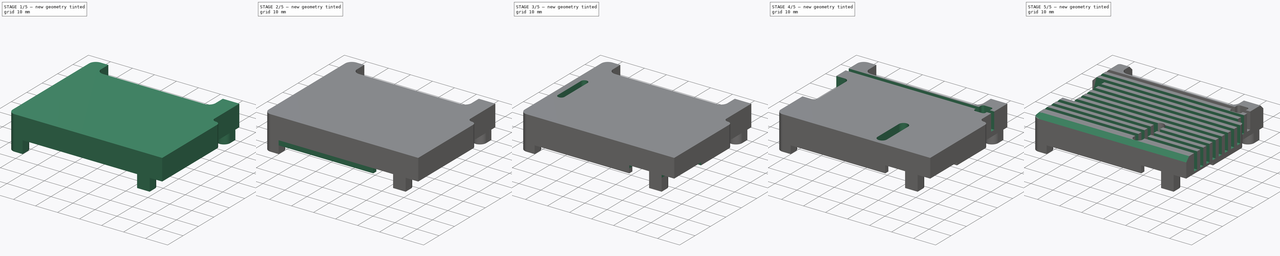
[diagram: build sequence overview — one tinted view per stage of 5, left to right]
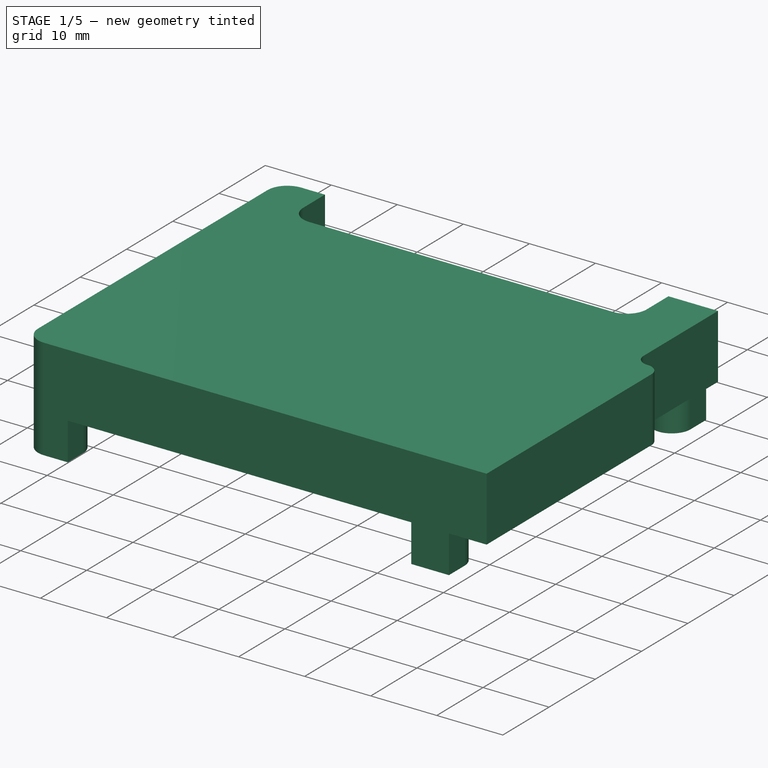
[diagram: stage 1 of 5 — iso view after this stage's code; geometry added in this stage tinted green]
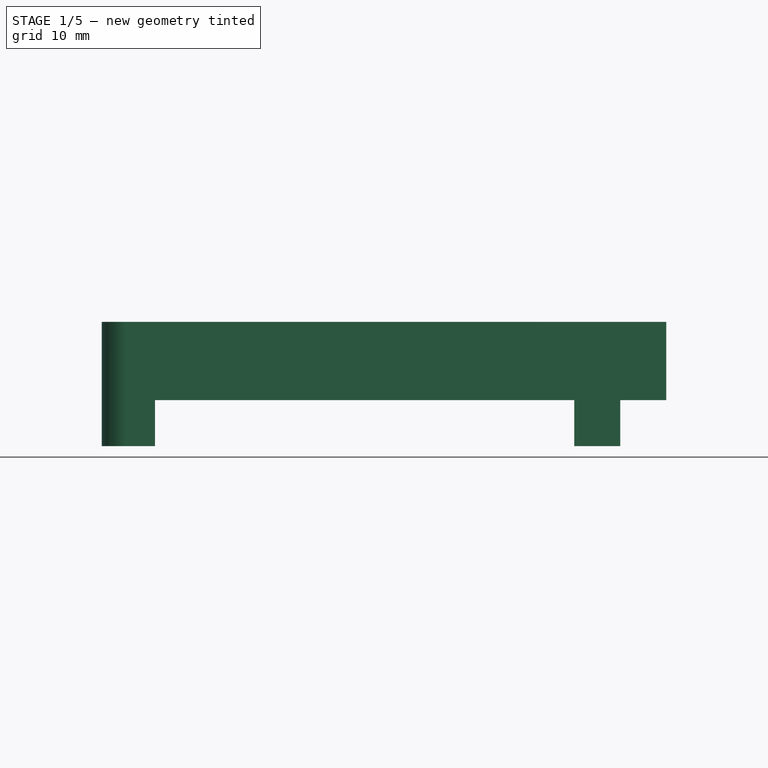
[diagram: stage 1 of 5 — front view after this stage's code; geometry added in this stage tinted green]
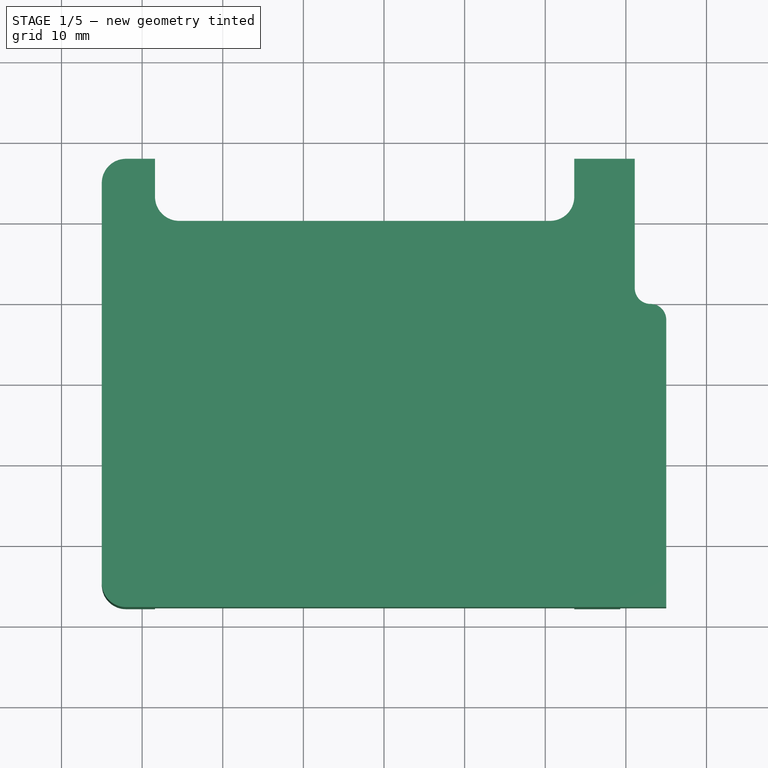
[diagram: stage 1 of 5 — top view after this stage's code; geometry added in this stage tinted green]
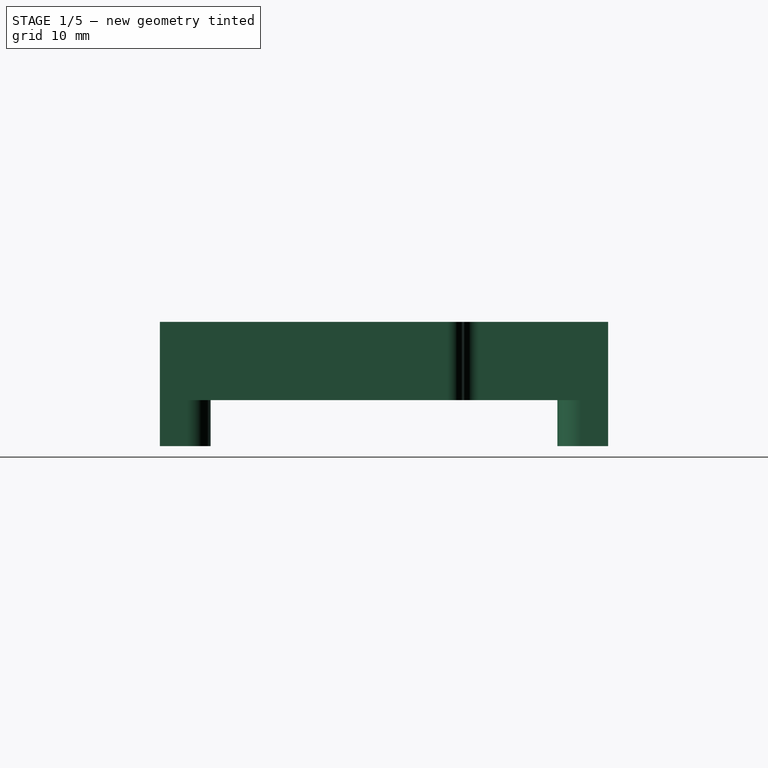
[diagram: stage 1 of 5 — right view after this stage's code; geometry added in this stage tinted green]
FCSTD DOCUMENT  (FreeCAD 0.19R24276 (Git))
Label: heatsink-top
License: All rights reserved
LicenseURL: http://en.wikipedia.org/wiki/All_rights_reserved
objects: Sketcher::SketchObject×13, PartDesign::Pocket×8, PartDesign::Pad×5, PartDesign::Chamfer×2, PartDesign::Mirrored×1, PartDesign::LinearPattern×1, PartDesign::Body×1
note: 46 computed .brp shape members not serialized (recipe doc carries the construction recipe); baked Part::Feature solids carry a one-line shape summary decoded from their .brp

FEATURE [Sketcher::SketchObject] Sketch
  FullyConstrained = false
  MapMode = 5
  Support = -> [XY_Plane]
  sketch-geometry (18):
    g0: LineSegment StartX=-35 StartY=24.8 StartZ=0 EndX=-35 EndY=-24.8 EndZ=0
    g1: LineSegment StartX=-32 StartY=27.8 StartZ=0 EndX=-28.4 EndY=27.8 EndZ=0
    g2: LineSegment StartX=-28.4 StartY=27.8 StartZ=0 EndX=-28.4 EndY=23.1 EndZ=0
    g3: ArcOfCircle CenterX=-32 CenterY=24.8 CenterZ=0 NormalX=0 NormalY=0 NormalZ=1 AngleXU=0 Radius=3 StartAngle=1.5708 EndAngle=3.14159
    g4: ArcOfCircle CenterX=-32 CenterY=-24.8 CenterZ=0 NormalX=0 NormalY=0 NormalZ=1 AngleXU=0 Radius=3 StartAngle=3.14159 EndAngle=4.71239
    g5: LineSegment StartX=-32 StartY=-27.8 StartZ=0 EndX=35 EndY=-27.8 EndZ=0
    g6: LineSegment StartX=35 StartY=-27.8 StartZ=0 EndX=35 EndY=7.85 EndZ=0
    g7: ArcOfCircle CenterX=33.05 CenterY=7.85 CenterZ=0 NormalX=0 NormalY=0 NormalZ=1 AngleXU=0 Radius=1.95 StartAngle=1e-16 EndAngle=1.5708
    g8: ArcOfCircle CenterX=33.05 CenterY=11.75 CenterZ=0 NormalX=0 NormalY=0 NormalZ=1 AngleXU=0 Radius=1.95 StartAngle=3.14159 EndAngle=4.71239
    g9: LineSegment StartX=31.1 StartY=11.75 StartZ=0 EndX=31.1 EndY=27.8 EndZ=0
    g10: LineSegment StartX=31.1 StartY=27.8 StartZ=0 EndX=23.6 EndY=27.8 EndZ=0
    g11: LineSegment StartX=23.6 StartY=27.8 StartZ=0 EndX=23.6 EndY=23.1 EndZ=0
    g12: ArcOfCircle CenterX=-25.4 CenterY=23.1 CenterZ=0 NormalX=0 NormalY=0 NormalZ=1 AngleXU=0 Radius=3 StartAngle=3.14159 EndAngle=4.71239
    g13: ArcOfCircle CenterX=20.6 CenterY=23.1 CenterZ=0 NormalX=0 NormalY=0 NormalZ=1 AngleXU=0 Radius=3 StartAngle=4.71239 EndAngle=6.28319
    g14: LineSegment StartX=-25.4 StartY=20.1 StartZ=0 EndX=20.6 EndY=20.1 EndZ=0
    g15: LineSegment StartX=25 StartY=9.8 StartZ=0 EndX=40 EndY=9.8 EndZ=0
    g16: LineSegment StartX=-35 StartY=24.8 StartZ=0 EndX=-35 EndY=27.8 EndZ=0
    g17: LineSegment StartX=-32 StartY=27.8 StartZ=0 EndX=-35 EndY=27.8 EndZ=0
  constraints (49):
    c: Vertical(g0)
    c: Horizontal(g1)
    c: Coincident(g2,g1)
    c: Vertical(g2)
    c: Tangent(g3,g1) = 1.5708
    c: Tangent(g3,g0) = -1.5708
    c: Tangent(g4,g0) = -1.5708
    c: Horizontal(g5)
    c: Coincident(g6,g5)
    c: Vertical(g6)
    c: Vertical(g9)
    c: Coincident(g10,g9)
    c: Horizontal(g10)
    c: Coincident(g11,g10)
    c: Vertical(g11)
    c: Horizontal(g14)
    c: Horizontal(g1,g10)
    c: Equal(g3,g4)
    c: Radius(g3) = 3
    c: Tangent(g5,g4) = -1.5708
    c: Tangent(g12,g2) = -1.5708
    c: Tangent(g14,g12) = -1.5708
    c: Tangent(g14,g13) = -1.5708
    c: Tangent(g13,g11) = 1.5708
    c: Tangent(g7,g6) = -1.5708
    c: Coincident(g7,g8)
    c: Horizontal(g15)
    c: Tangent(g15,g8)
    c: PointOnObject(g7,g15)
    c: Tangent(g7,g15)
    c: Equal(g7,g8)
    c: Tangent(g9,g8) = 1.5708
    c: DistanceX(g0,g5) = 70
    c: Equal(g12,g13)
    c: Radius(g12) = 3
    c: DistanceX(g0,g1) = 6.6
    c: DistanceX(g10,g10) = 7.5
    c: DistanceY(g12,g1) = 7.7
    c: DistanceY(g4,g1) = 55.6
    c: Coincident(g16,g0)
    c: Coincident(g17,g1)
    c: Coincident(g17,g16)
    c: Horizontal(g17)
    c: Vertical(g16)
    c: Symmetric(g16,g5,g-1)
    c: DistanceY(g7,g9) = 18
    c: DistanceX(g15) = 25
    c: DistanceX(g15) = 40
    c: DistanceX(g1,g10) = 52
FEATURE [PartDesign::Pad] Pad
  AllowMultiFace = false
  Direction = (1,1,1)
  Length = 9.7
  Length2 = 100
  Profile = -> Sketch
  Type = 0
FEATURE [Sketcher::SketchObject] Sketch001
  ExternalGeometry = -> [Pad]
  FullyConstrained = false
  MapMode = 5
  Placement = pos=(0,0,0) rot=(1,0,0;3.14159rad)
  Support = -> [Pad]
  sketch-geometry (11):
    g0: LineSegment StartX=-35 StartY=-21.5 StartZ=0 EndX=-35 EndY=-24.8 EndZ=0
    g1: LineSegment StartX=-28.4 StartY=-27.8 StartZ=0 EndX=-28.4 EndY=-24.5 EndZ=0
    g2: ArcOfCircle CenterX=-32 CenterY=-24.8 CenterZ=0 NormalX=0 NormalY=0 NormalZ=1 AngleXU=0 Radius=3 StartAngle=3.14159 EndAngle=4.71239
    g3: LineSegment StartX=-32 StartY=-27.8 StartZ=0 EndX=-28.4 EndY=-27.8 EndZ=0
    g4: LineSegment StartX=-35 StartY=-21.5 StartZ=0 EndX=-31.4 EndY=-21.5 EndZ=0
    g5: ArcOfCircle CenterX=-31.4 CenterY=-24.5 CenterZ=0 NormalX=0 NormalY=0 NormalZ=1 AngleXU=0 Radius=3 StartAngle=0 EndAngle=1.5708
    g6: LineSegment StartX=23.6 StartY=-27.8 StartZ=0 EndX=23.6 EndY=-24.45 EndZ=0
    g7: LineSegment StartX=23.6 StartY=-27.8 StartZ=0 EndX=29.3 EndY=-27.8 EndZ=0
    g8: ArcOfCircle CenterX=26.45 CenterY=-24.45 CenterZ=0 NormalX=0 NormalY=0 NormalZ=1 AngleXU=0 Radius=2.85 StartAngle=0 EndAngle=3.14159
    g9: LineSegment StartX=29.3 StartY=-27.8 StartZ=0 EndX=29.3 EndY=-24.45 EndZ=0
    g10: GeomPoint X=26.45 Y=-21.6 Z=0
  constraints (25):
    c: Coincident(g0,g-3)
    c: Coincident(g1,g-4)
    c: PointOnObject(g1,g-5)
    c: Tangent(g2,g-4) = -1.5708
    c: Coincident(g3,g2)
    c: Coincident(g3,g1)
    c: Tangent(g2,g0) = -1.5708
    c: Coincident(g4,g0)
    c: Horizontal(g4)
    c: Tangent(g5,g4) = 1.5708
    c: Tangent(g5,g1) = -1.5708
    c: Equal(g5,g2)
    c: DistanceY(g2,g0) = 6.3
    c: Coincident(g6,g-7)
    c: PointOnObject(g6,g-6)
    c: Coincident(g7,g6)
    c: PointOnObject(g7,g-7)
    c: Coincident(g9,g7)
    c: Tangent(g9,g8) = -1.5708
    c: Tangent(g8,g6) = 1.5708
    c: Vertical(g9)
    c: DistanceX(g7,g7) = 5.7
    c: PointOnObject(g10,g8)
    c: Vertical(g10,g8)
    c: DistanceY(g6,g10) = 6.2
FEATURE [PartDesign::Pad] Pad001
  AllowMultiFace = false
  BaseFeature = -> Pad
  Direction = (1,1,1)
  Length = 5.7
  Length2 = 100
  Profile = -> Sketch001
  Type = 0
FEATURE [PartDesign::Mirrored] Mirrored
  BaseFeature = -> Pad001
  MirrorPlane = -> Sketch001 [H_Axis]
  Originals = -> [Pad001]
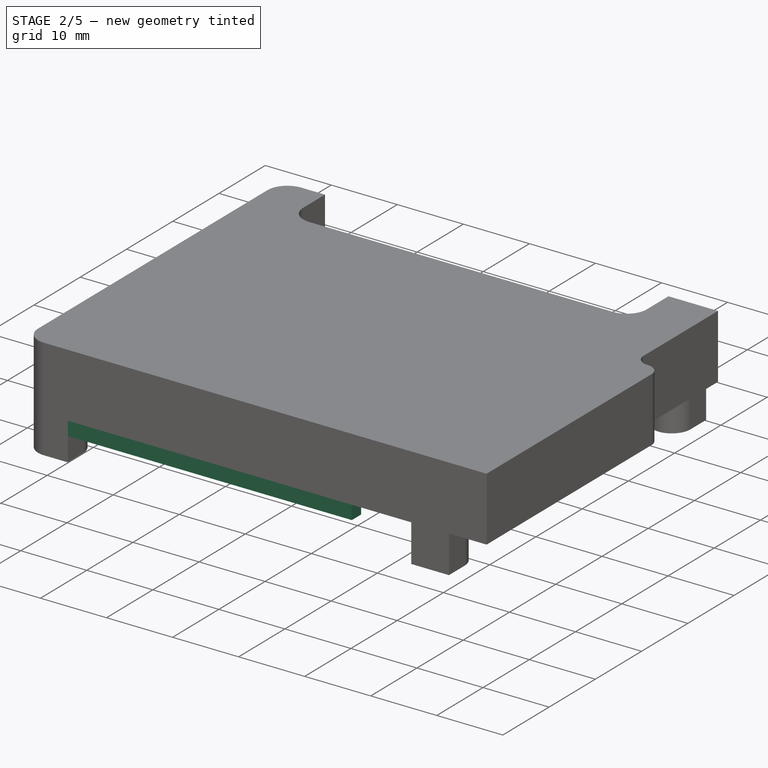
[diagram: stage 2 of 5 — iso view after this stage's code; geometry added in this stage tinted green]
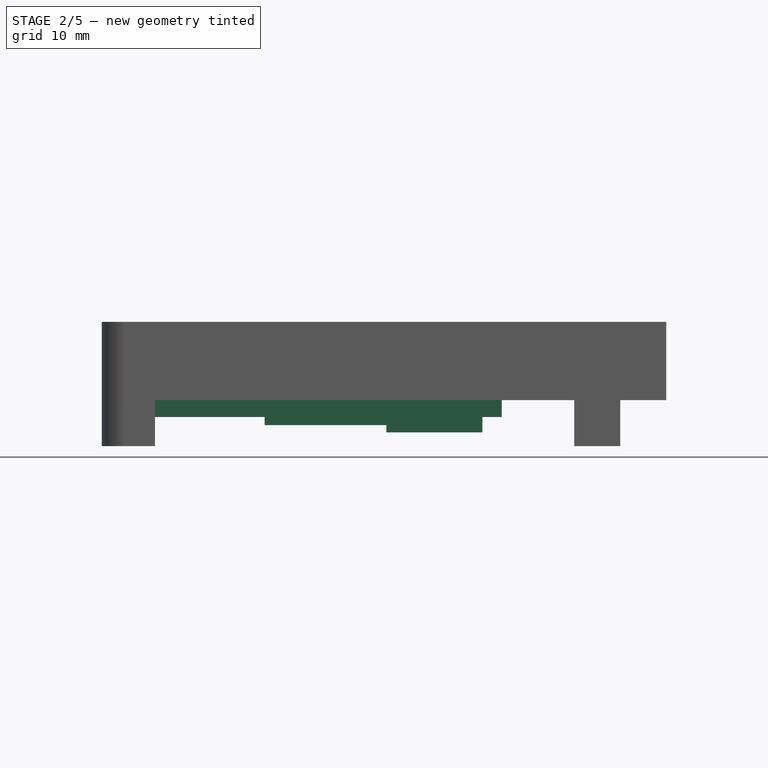
[diagram: stage 2 of 5 — front view after this stage's code; geometry added in this stage tinted green]
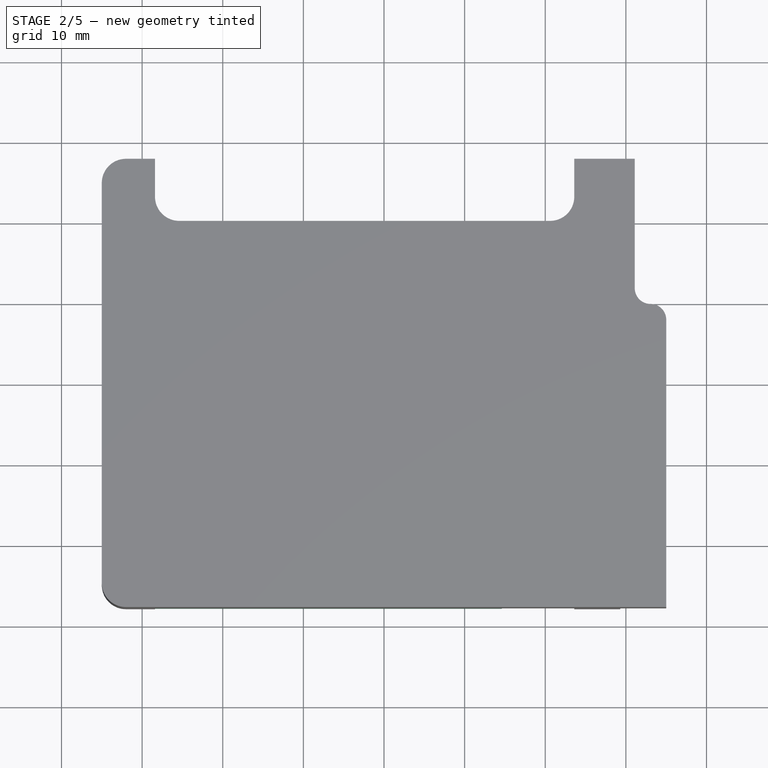
[diagram: stage 2 of 5 — top view after this stage's code; geometry added in this stage tinted green]
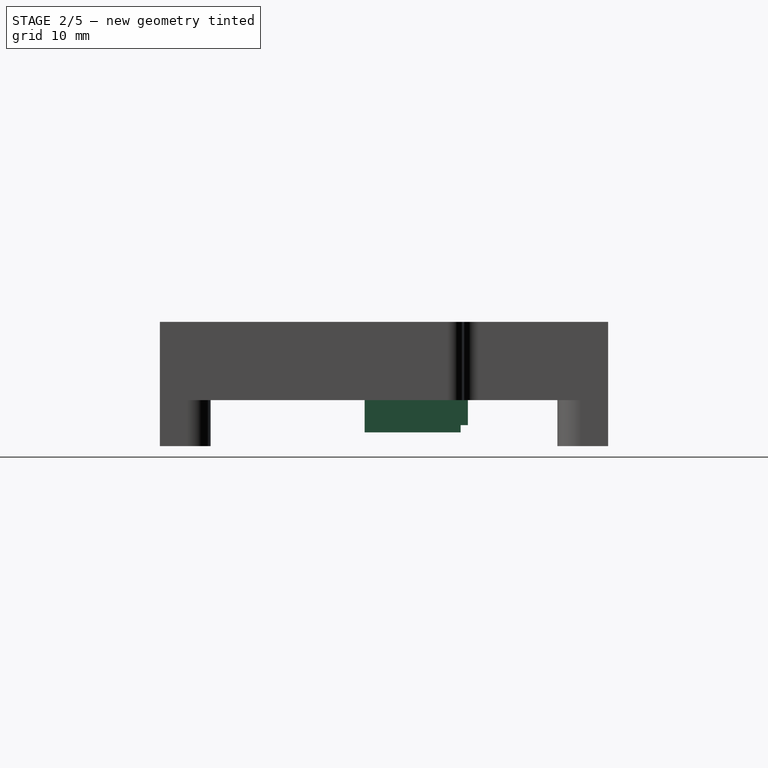
[diagram: stage 2 of 5 — right view after this stage's code; geometry added in this stage tinted green]
FEATURE [Sketcher::SketchObject] Sketch002
  ExternalGeometry = -> [Mirrored]
  FullyConstrained = false
  MapMode = 5
  Placement = pos=(0,0,0) rot=(1,0,0;3.14159rad)
  Support = -> [Mirrored]
  sketch-geometry (8):
    g0: LineSegment StartX=-28.4 StartY=27.8 StartZ=0 EndX=14.6 EndY=27.8 EndZ=0
    g1: LineSegment StartX=14.6 StartY=27.8 StartZ=0 EndX=14.6 EndY=25.8 EndZ=0
    g2: ArcOfCircle CenterX=13.1 CenterY=25.8 CenterZ=0 NormalX=0 NormalY=0 NormalZ=1 AngleXU=0 Radius=1.5 StartAngle=2.2e-15 EndAngle=1.5708
    g3: ArcOfCircle CenterX=9.1 CenterY=25.8 CenterZ=0 NormalX=0 NormalY=0 NormalZ=1 AngleXU=0 Radius=1.5 StartAngle=1.5708 EndAngle=3.14159
    g4: LineSegment StartX=9.1 StartY=27.3 StartZ=0 EndX=13.1 EndY=27.3 EndZ=0
    g5: LineSegment StartX=7.6 StartY=25.8 StartZ=0 EndX=-27.1 EndY=25.8 EndZ=0
    g6: ArcOfCircle CenterX=-27.1 CenterY=24.5 CenterZ=0 NormalX=0 NormalY=0 NormalZ=1 AngleXU=0 Radius=1.3 StartAngle=1.5708 EndAngle=3.14159
    g7: LineSegment StartX=-28.4 StartY=27.8 StartZ=0 EndX=-28.4 EndY=24.5 EndZ=0
  constraints (21):
    c: Coincident(g0,g-4)
    c: PointOnObject(g0,g-4)
    c: Coincident(g1,g0)
    c: Vertical(g1)
    c: Coincident(g2,g1)
    c: Horizontal(g4)
    c: Tangent(g4,g2) = 1.5708
    c: Tangent(g4,g3) = 1.5708
    c: DistanceY(g2,g0) = 0.5
    c: Coincident(g5,g3)
    c: Horizontal(g5)
    c: Coincident(g7,g0)
    c: Tangent(g6,g5) = -1.5708
    c: DistanceY(g5,g0) = 2
    c: Equal(g3,g2)
    c: Horizontal(g1,g3)
    c: Perpendicular(g3,g5)
    c: DistanceX(g0,g0) = 43
    c: DistanceX(g3,g1) = 7
    c: Coincident(g6,g-3)
    c: Tangent(g7,g6) = -1.5708
FEATURE [PartDesign::Pad] Pad002
  AllowMultiFace = false
  BaseFeature = -> Mirrored
  Direction = (1,1,1)
  Length = 2.1
  Length2 = 100
  Profile = -> Sketch002
  Type = 0
FEATURE [Sketcher::SketchObject] Sketch003
  ExternalGeometry = -> [Pad002]
  FullyConstrained = false
  MapMode = 5
  Placement = pos=(0,0,0) rot=(1,0,0;3.14159rad)
  Support = -> [Pad002]
  sketch-geometry (4):
    g0: LineSegment StartX=-14.8 StartY=2.4 StartZ=0 EndX=12.2 EndY=2.4 EndZ=0
    g1: LineSegment StartX=12.2 StartY=2.4 StartZ=0 EndX=12.2 EndY=-10.4 EndZ=0
    g2: LineSegment StartX=12.2 StartY=-10.4 StartZ=0 EndX=-14.8 EndY=-10.4 EndZ=0
    g3: LineSegment StartX=-14.8 StartY=-10.4 StartZ=0 EndX=-14.8 EndY=2.4 EndZ=0
  constraints (12):
    c: Coincident(g0,g1)
    c: Coincident(g1,g2)
    c: Coincident(g2,g3)
    c: Coincident(g3,g0)
    c: Horizontal(g0)
    c: Horizontal(g2)
    c: Vertical(g1)
    c: Vertical(g3)
    c: DistanceX(g0,g0) = 27
    c: DistanceY(g3,g3) = 12.8
    c: DistanceY(g-3,g2) = 9.7
    c: DistanceX(g0,g-4) = 22.8
FEATURE [PartDesign::Pad] Pad003
  AllowMultiFace = false
  BaseFeature = -> Pad002
  Direction = (1,1,1)
  Length = 3.1
  Length2 = 100
  Profile = -> Sketch003
  Type = 0
FEATURE [Sketcher::SketchObject] Sketch004
  ExternalGeometry = -> [Pad003]
  FullyConstrained = false
  MapMode = 5
  Placement = pos=(0,0,-3.1) rot=(1,0,0;3.14159rad)
  Support = -> [Pad003]
  sketch-geometry (4):
    g0: LineSegment StartX=0.3 StartY=2.4 StartZ=0 EndX=12.2 EndY=2.4 EndZ=0
    g1: LineSegment StartX=12.2 StartY=2.4 StartZ=0 EndX=12.2 EndY=-9.5 EndZ=0
    g2: LineSegment StartX=12.2 StartY=-9.5 StartZ=0 EndX=0.3 EndY=-9.5 EndZ=0
    g3: LineSegment StartX=0.3 StartY=-9.5 StartZ=0 EndX=0.3 EndY=2.4 EndZ=0
  constraints (11):
    c: Coincident(g0,g1)
    c: Coincident(g1,g2)
    c: Coincident(g2,g3)
    c: Coincident(g3,g0)
    c: Horizontal(g2)
    c: Vertical(g1)
    c: Vertical(g3)
    c: PointOnObject(g0,g-3)
    c: Coincident(g0,g-3)
    c: Equal(g0,g3)
    c: DistanceX(g0,g0) = 11.9
FEATURE [PartDesign::Pad] Pad004
  AllowMultiFace = false
  BaseFeature = -> Pad003
  Direction = (1,1,1)
  Length = 0.9
  Length2 = 100
  Profile = -> Sketch004
  Type = 0
FEATURE [Sketcher::SketchObject] Sketch005
  ExternalGeometry = -> [Pad004]
  FullyConstrained = false
  MapMode = 5
  Placement = pos=(0,0,-5.7) rot=(1,0,0;3.14159rad)
  Support = -> [Pad004]
  sketch-geometry (4):
    g0: Circle CenterX=-31.55 CenterY=24.45 CenterZ=0 NormalX=0 NormalY=0 NormalZ=1 AngleXU=0 Radius=1.35
    g1: Circle CenterX=26.45 CenterY=24.45 CenterZ=0 NormalX=0 NormalY=0 NormalZ=1 AngleXU=0 Radius=1.35
    g2: Circle CenterX=-31.55 CenterY=-24.55 CenterZ=0 NormalX=0 NormalY=0 NormalZ=1 AngleXU=0 Radius=1.35
    g3: Circle CenterX=26.45 CenterY=-24.55 CenterZ=0 NormalX=0 NormalY=0 NormalZ=1 AngleXU=0 Radius=1.35
  constraints (11):
    c: Equal(g0,g1)
    c: Equal(g1,g2)
    c: Equal(g2,g3)
    c: Horizontal(g0,g1)
    c: Vertical(g0,g2)
    c: Vertical(g3,g1)
    c: Horizontal(g2,g3)
    c: DistanceX(g0,g1) = 58
    c: DistanceY(g2,g0) = 49
    c: Diameter(g0) = 2.7
    c: Coincident(g-3,g1)
FEATURE [PartDesign::Pocket] Pocket
  AllowMultiFace = false
  BaseFeature = -> Pad004
  Length = 9.5
  Length2 = 100
  Profile = -> Sketch005
  Type = 0
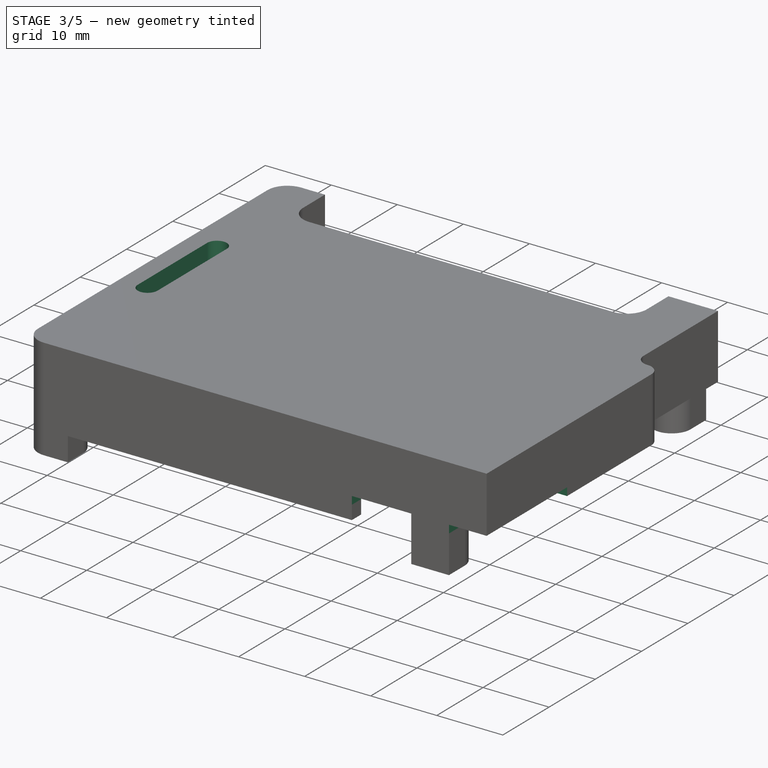
[diagram: stage 3 of 5 — iso view after this stage's code; geometry added in this stage tinted green]
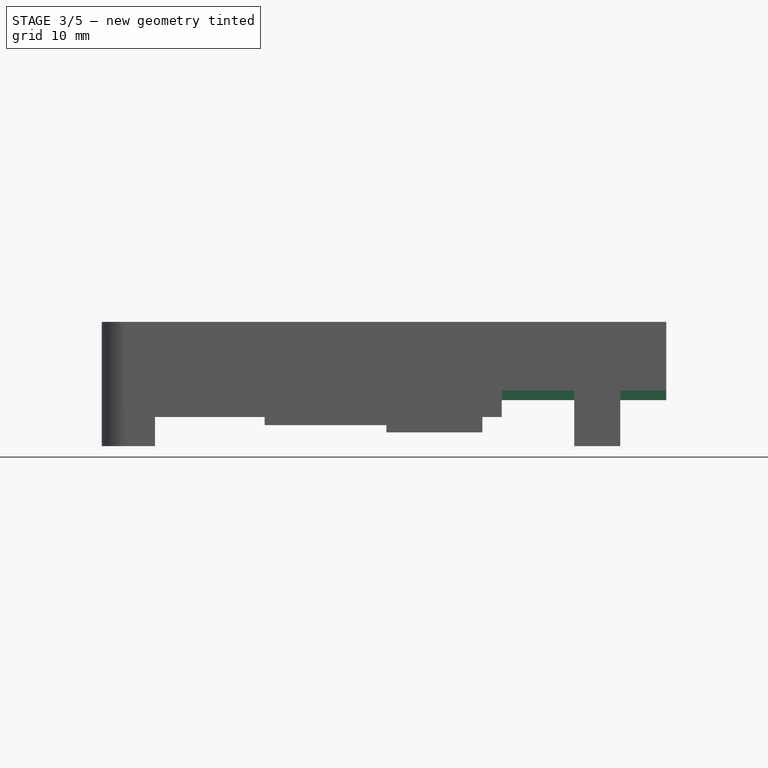
[diagram: stage 3 of 5 — front view after this stage's code; geometry added in this stage tinted green]
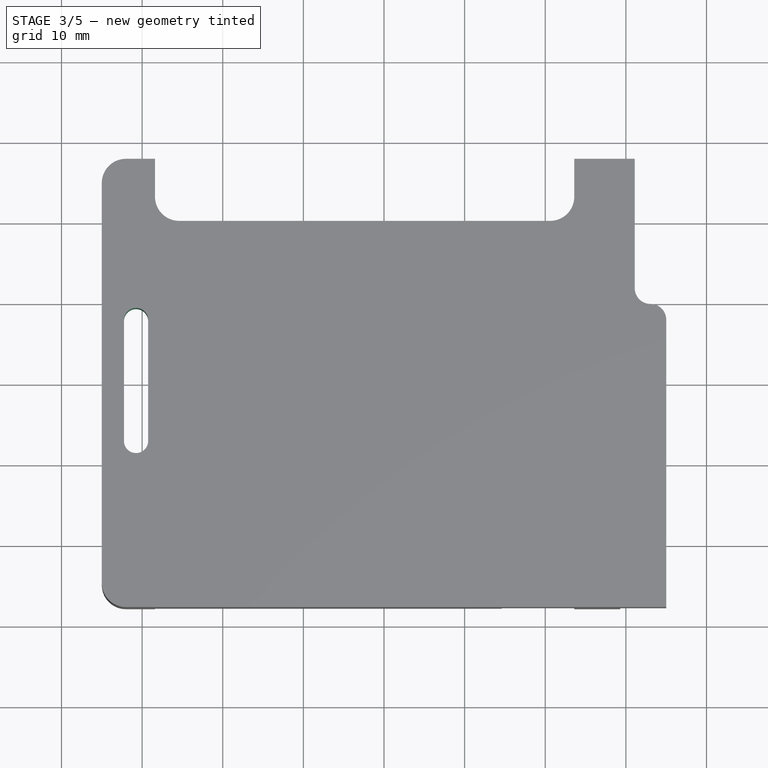
[diagram: stage 3 of 5 — top view after this stage's code; geometry added in this stage tinted green]
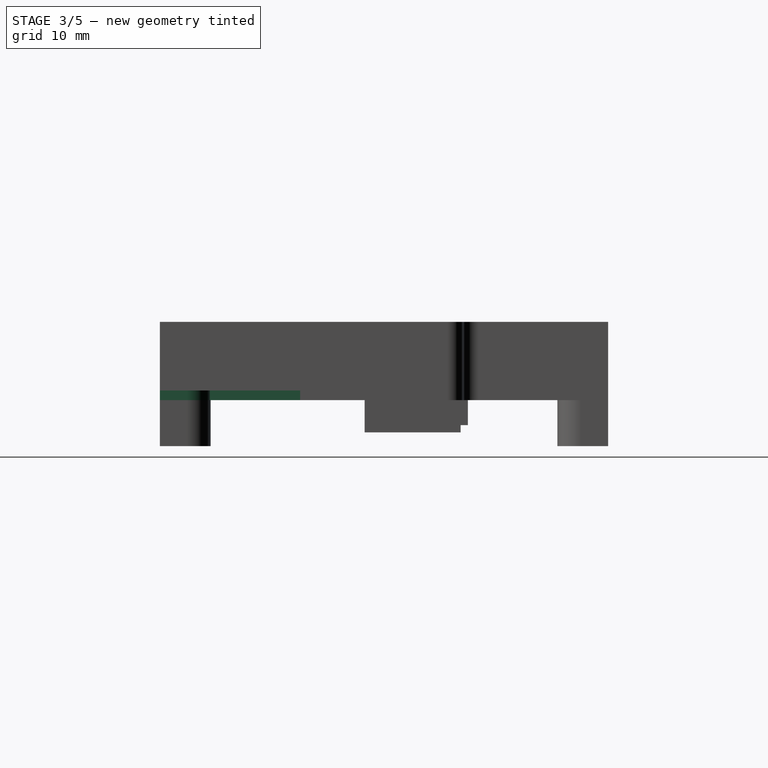
[diagram: stage 3 of 5 — right view after this stage's code; geometry added in this stage tinted green]
FEATURE [Sketcher::SketchObject] Sketch006
  ExternalGeometry = -> [Pocket]
  FullyConstrained = false
  MapMode = 5
  Placement = pos=(0,0,0) rot=(1,0,0;3.14159rad)
  Support = -> [Pocket]
  sketch-geometry (12):
    g0: LineSegment StartX=-28.1 StartY=12.2 StartZ=0 EndX=-28.1 EndY=-12.8 EndZ=0
    g1: LineSegment StartX=-34.4 StartY=7.95 StartZ=0 EndX=-34.4 EndY=-8.55 EndZ=0
    g2: LineSegment StartX=-32.4 StartY=13.2 StartZ=0 EndX=-29.1 EndY=13.2 EndZ=0
    g3: LineSegment StartX=-32.4 StartY=-13.8 StartZ=0 EndX=-29.1 EndY=-13.8 EndZ=0
    g4: LineSegment StartX=-33.4 StartY=-9.55 StartZ=0 EndX=-33.4 EndY=-12.8 EndZ=0
    g5: LineSegment StartX=-33.4 StartY=12.2 StartZ=0 EndX=-33.4 EndY=8.95 EndZ=0
    g6: ArcOfCircle CenterX=-29.1 CenterY=12.2 CenterZ=0 NormalX=0 NormalY=0 NormalZ=1 AngleXU=0 Radius=1 StartAngle=1e-16 EndAngle=1.5708
    g7: ArcOfCircle CenterX=-29.1 CenterY=-12.8 CenterZ=0 NormalX=0 NormalY=0 NormalZ=1 AngleXU=0 Radius=1 StartAngle=4.71239 EndAngle=6.28319
    g8: ArcOfCircle CenterX=-32.4 CenterY=-12.8 CenterZ=0 NormalX=0 NormalY=0 NormalZ=1 AngleXU=0 Radius=1 StartAngle=3.14159 EndAngle=4.71239
    g9: ArcOfCircle CenterX=-33.4 CenterY=-8.55 CenterZ=0 NormalX=0 NormalY=0 NormalZ=1 AngleXU=0 Radius=1 StartAngle=3.14159 EndAngle=4.71239
    g10: ArcOfCircle CenterX=-33.4 CenterY=7.95 CenterZ=0 NormalX=0 NormalY=0 NormalZ=1 AngleXU=0 Radius=1 StartAngle=1.5708 EndAngle=3.14159
    g11: ArcOfCircle CenterX=-32.4 CenterY=12.2 CenterZ=0 NormalX=0 NormalY=0 NormalZ=1 AngleXU=0 Radius=1 StartAngle=1.5708 EndAngle=3.14159
  constraints (30):
    c: Vertical(g0)
    c: Vertical(g1)
    c: Horizontal(g2)
    c: Horizontal(g3)
    c: Vertical(g4)
    c: Vertical(g5)
    c: Tangent(g6,g2) = 1.5708
    c: Tangent(g6,g0) = 1.5708
    c: Tangent(g5,g11) = -1.5708
    c: Tangent(g11,g2) = 1.5708
    c: Tangent(g0,g7) = 1.5708
    c: Tangent(g7,g3) = -1.5708
    c: Tangent(g3,g8) = -1.5708
    c: Tangent(g8,g4) = -1.5708
    c: Tangent(g9,g1) = -1.5708
    c: Perpendicular(g9,g4) = 4.71239
    c: Perpendicular(g10,g5) = 1.5708
    c: Tangent(g1,g10) = -1.5708
    c: Equal(g5,g4)
    c: Equal(g6,g11)
    c: Equal(g11,g10)
    c: Equal(g10,g9)
    c: Equal(g9,g8)
    c: Equal(g8,g7)
    c: DistanceY(g3,g2) = 27
    c: DistanceX(g4,g0) = 5.3
    c: DistanceY(g1,g1) = 16.5
    c: Radius(g11) = 1
    c: DistanceX(g-3,g1) = 0.6
    c: DistanceY(g2,g-3) = 8.3
FEATURE [PartDesign::Pocket] Pocket001
  AllowMultiFace = false
  BaseFeature = -> Pocket
  Length = 0.5
  Length2 = 100
  Profile = -> Sketch006
  Type = 0
FEATURE [Sketcher::SketchObject] Sketch007
  ExternalGeometry = -> [Pocket001]
  FullyConstrained = false
  MapMode = 5
  Placement = pos=(0,0,0) rot=(1,0,0;3.14159rad)
  Support = -> [Pocket001]
  sketch-geometry (19):
    g0: LineSegment StartX=-27.1 StartY=25.8 StartZ=0 EndX=7.6 EndY=25.8 EndZ=0
    g1: LineSegment StartX=9.1 StartY=27.3 StartZ=0 EndX=13.1 EndY=27.3 EndZ=0
    g2: LineSegment StartX=-27.6 StartY=25.3 StartZ=0 EndX=-27.6 EndY=5.5 EndZ=0
    g3: LineSegment StartX=-27.1 StartY=5 StartZ=0 EndX=24.6 EndY=5 EndZ=0
    g4: LineSegment StartX=25.1 StartY=5.5 StartZ=0 EndX=25.1 EndY=9.9 EndZ=0
    g5: LineSegment StartX=25.6 StartY=10.4 StartZ=0 EndX=35 EndY=10.4 EndZ=0
    g6: ArcOfCircle CenterX=25.6 CenterY=9.9 CenterZ=0 NormalX=0 NormalY=0 NormalZ=1 AngleXU=0 Radius=0.5 StartAngle=1.5708 EndAngle=3.14159
    g7: ArcOfCircle CenterX=24.6 CenterY=5.5 CenterZ=0 NormalX=0 NormalY=0 NormalZ=1 AngleXU=0 Radius=0.5 StartAngle=4.71239 EndAngle=6.28319
    g8: ArcOfCircle CenterX=-27.1 CenterY=5.5 CenterZ=0 NormalX=0 NormalY=0 NormalZ=1 AngleXU=0 Radius=0.5 StartAngle=3.14159 EndAngle=4.71239
    g9: ArcOfCircle CenterX=9.1 CenterY=25.8 CenterZ=0 NormalX=0 NormalY=0 NormalZ=1 AngleXU=0 Radius=1.5 StartAngle=1.5708 EndAngle=3.14159
    g10: ArcOfCircle CenterX=13.1 CenterY=25.8 CenterZ=0 NormalX=0 NormalY=0 NormalZ=1 AngleXU=0 Radius=1.5 StartAngle=3e-15 EndAngle=1.5708
    g11: LineSegment StartX=14.6 StartY=25.8 StartZ=0 EndX=14.6 EndY=27.8 EndZ=0
    g12: LineSegment StartX=14.6 StartY=27.8 StartZ=0 EndX=23.6 EndY=27.8 EndZ=0
    g13: LineSegment StartX=23.6 StartY=27.8 StartZ=0 EndX=23.6 EndY=24.45 EndZ=0
    g14: ArcOfCircle CenterX=26.45 CenterY=24.45 CenterZ=0 NormalX=0 NormalY=0 NormalZ=1 AngleXU=0 Radius=2.85 StartAngle=3.14159 EndAngle=6.28319
    g15: LineSegment StartX=29.3 StartY=27.8 StartZ=0 EndX=29.3 EndY=24.45 EndZ=0
    g16: LineSegment StartX=29.3 StartY=27.8 StartZ=0 EndX=35 EndY=27.8 EndZ=0
    g17: LineSegment StartX=35 StartY=27.8 StartZ=0 EndX=35 EndY=10.4 EndZ=0
    g18: ArcOfCircle CenterX=-27.1 CenterY=25.3 CenterZ=0 NormalX=0 NormalY=0 NormalZ=1 AngleXU=0 Radius=0.5 StartAngle=1.5708 EndAngle=3.14159
  constraints (42):
    c: Coincident(g0,g-3)
    c: Coincident(g0,g-3)
    c: Coincident(g1,g-4)
    c: Coincident(g1,g-4)
    c: Vertical(g2)
    c: Horizontal(g3)
    c: Vertical(g4)
    c: PointOnObject(g5,g-5)
    c: Tangent(g8,g2) = -1.5708
    c: Tangent(g8,g3) = -1.5708
    c: Tangent(g7,g3) = -1.5708
    c: Tangent(g7,g4) = -1.5708
    c: Tangent(g6,g4) = 1.5708
    c: Tangent(g6,g5) = 1.5708
    c: Horizontal(g5)
    c: Coincident(g9,g0)
    c: Tangent(g9,g1) = 1.5708
    c: Coincident(g10,g-6)
    c: Tangent(g10,g1) = 1.5708
    c: Coincident(g11,g10)
    c: Coincident(g11,g-6)
    c: Coincident(g12,g11)
    c: Coincident(g12,g-7)
    c: Coincident(g13,g12)
    c: Coincident(g13,g-7)
    c: Tangent(g14,g13) = -1.5708
    c: Tangent(g14,g-8) = 1.5708
    c: Coincident(g15,g-8)
    c: Coincident(g15,g14)
    c: Coincident(g16,g15)
    c: Coincident(g16,g-5)
    c: Coincident(g17,g-5)
    c: Coincident(g17,g5)
    c: Tangent(g18,g2) = -1.5708
    c: Tangent(g18,g0) = 1.5708
    c: Equal(g18,g8)
    c: Equal(g8,g7)
    c: Equal(g7,g6)
    c: DistanceX(g-9,g2) = 0.5
    c: DistanceY(g3,g16) = 22.8
    c: DistanceY(g17,g17) = 17.4
    c: DistanceX(g4,g5) = 9.9
FEATURE [PartDesign::Pocket] Pocket002
  AllowMultiFace = false
  BaseFeature = -> Pocket001
  Length = 1.2
  Length2 = 100
  Profile = -> Sketch007
  Type = 0
FEATURE [Sketcher::SketchObject] Sketch008
  ExternalGeometry = -> [Pocket002]
  FullyConstrained = false
  MapMode = 5
  Placement = pos=(0,0,0.5) rot=(1,0,0;3.14159rad)
  Support = -> [Pocket002]
  sketch-geometry (9):
    g0: ArcOfCircle CenterX=-30.75 CenterY=7.2 CenterZ=0 NormalX=0 NormalY=0 NormalZ=1 AngleXU=0 Radius=1.5 StartAngle=2e-16 EndAngle=3.14159
    g1: ArcOfCircle CenterX=-30.75 CenterY=-7.8 CenterZ=0 NormalX=0 NormalY=0 NormalZ=1 AngleXU=0 Radius=1.5 StartAngle=3.14159 EndAngle=6.28319
    g2: LineSegment StartX=-32.25 StartY=7.2 StartZ=0 EndX=-32.25 EndY=-7.8 EndZ=0
    g3: LineSegment StartX=-29.25 StartY=7.2 StartZ=0 EndX=-29.25 EndY=-7.8 EndZ=0
    g4: GeomPoint X=-30.75 Y=8.7 Z=0
    g5: GeomPoint X=-30.75 Y=-9.3 Z=0
    g6: GeomPoint X=-28.1 Y=-0.3 Z=0
    g7: GeomPoint X=-29.25 Y=-0.3 Z=0
    g8: GeomPoint X=-30.75 Y=13.2 Z=0
  constraints (17):
    c: Vertical(g2)
    c: Vertical(g3)
    c: Tangent(g2,g0) = -1.5708
    c: Tangent(g0,g3) = 1.5708
    c: Tangent(g2,g1) = -1.5708
    c: Tangent(g3,g1) = 1.5708
    c: DistanceX(g0,g0) = 3
    c: PointOnObject(g4,g0)
    c: PointOnObject(g5,g1)
    c: Vertical(g5,g1)
    c: Vertical(g0,g4)
    c: DistanceY(g5,g4) = 18
    c: Symmetric(g-3,g-3,g6)
    c: Symmetric(g0,g1,g7)
    c: Horizontal(g7,g6)
    c: Symmetric(g-4,g-4,g8)
    c: Vertical(g8,g0)
FEATURE [PartDesign::Pocket] Pocket003
  AllowMultiFace = false
  BaseFeature = -> Pocket002
  Length = 5
  Length2 = 100
  Profile = -> Sketch008
  Type = 1
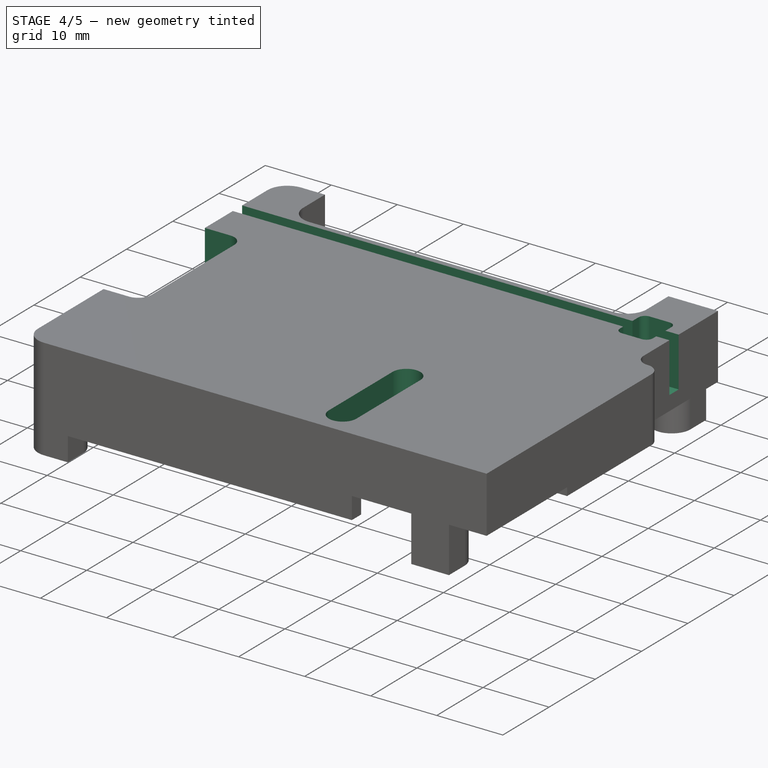
[diagram: stage 4 of 5 — iso view after this stage's code; geometry added in this stage tinted green]
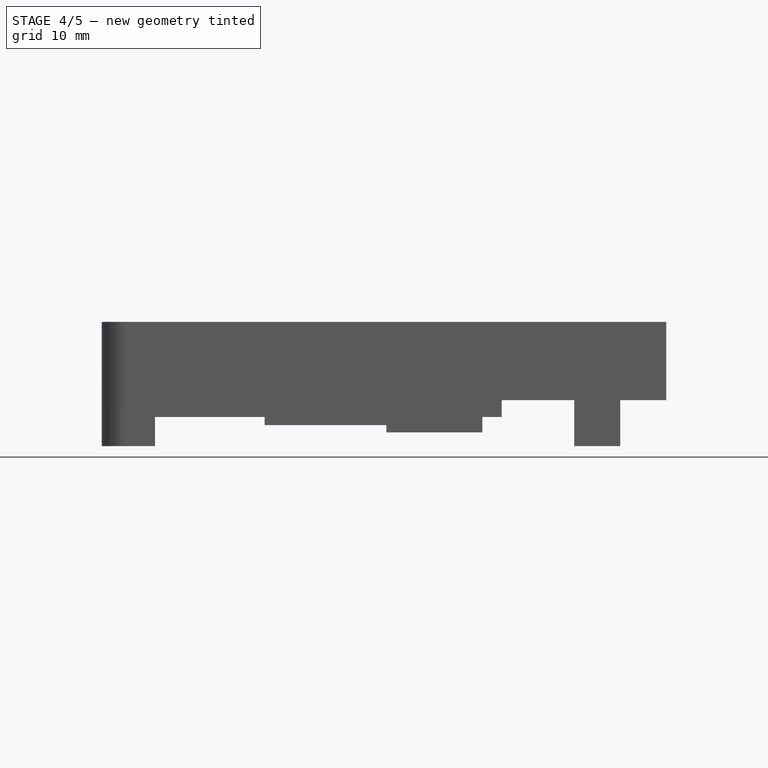
[diagram: stage 4 of 5 — front view after this stage's code; geometry added in this stage tinted green]
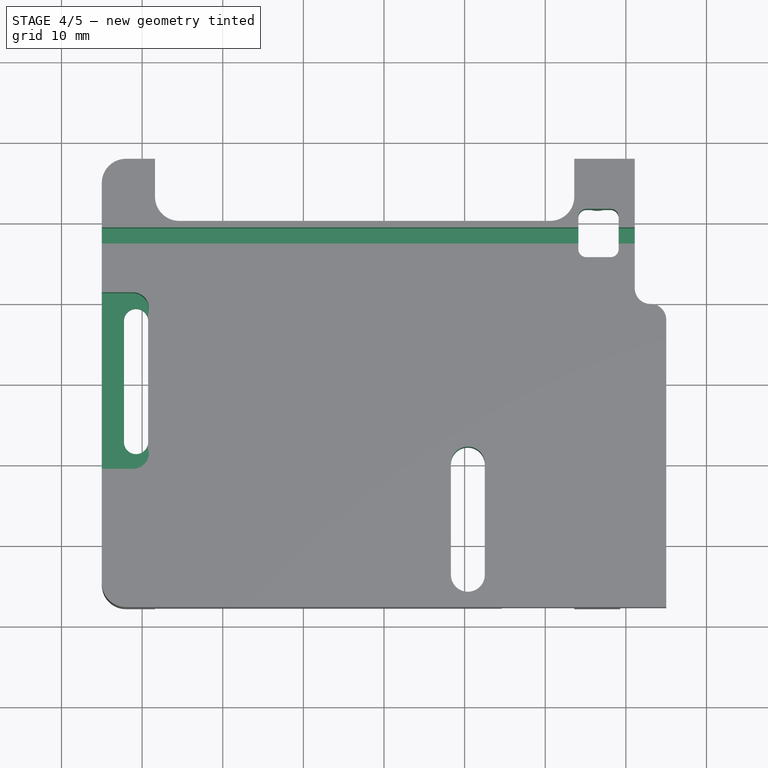
[diagram: stage 4 of 5 — top view after this stage's code; geometry added in this stage tinted green]
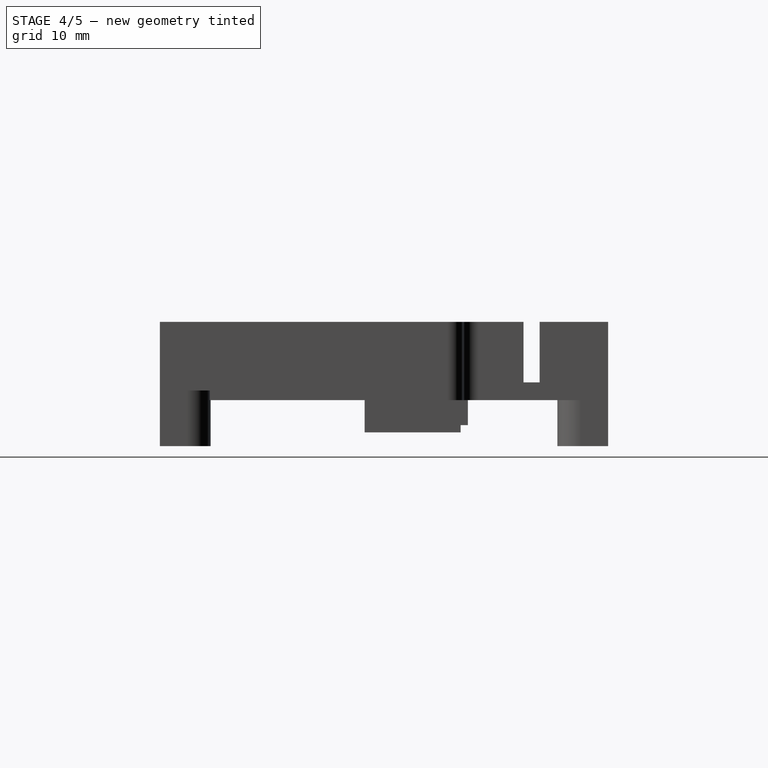
[diagram: stage 4 of 5 — right view after this stage's code; geometry added in this stage tinted green]
FEATURE [Sketcher::SketchObject] Sketch009
  ExternalGeometry = -> [Pocket003]
  FullyConstrained = false
  MapMode = 5
  Placement = pos=(0,0,1.2) rot=(1,0,0;3.14159rad)
  Support = -> [Pocket003]
  sketch-geometry (6):
    g0: ArcOfCircle CenterX=10.4 CenterY=23.8 CenterZ=0 NormalX=0 NormalY=0 NormalZ=1 AngleXU=0 Radius=2.1 StartAngle=-8.9e-15 EndAngle=3.14159
    g1: ArcOfCircle CenterX=10.4 CenterY=10 CenterZ=0 NormalX=0 NormalY=0 NormalZ=1 AngleXU=0 Radius=2.1 StartAngle=3.14159 EndAngle=6.28319
    g2: LineSegment StartX=8.3 StartY=23.8 StartZ=0 EndX=8.3 EndY=10 EndZ=0
    g3: LineSegment StartX=12.5 StartY=23.8 StartZ=0 EndX=12.5 EndY=10 EndZ=0
    g4: GeomPoint X=10.4 Y=25.9 Z=0
    g5: GeomPoint X=10.4 Y=7.9 Z=0
  constraints (14):
    c: Vertical(g3)
    c: Vertical(g2)
    c: Tangent(g2,g0) = -1.5708
    c: Tangent(g3,g0) = 1.5708
    c: Tangent(g2,g1) = -1.5708
    c: Tangent(g3,g1) = 1.5708
    c: DistanceX(g0,g0) = 4.2
    c: PointOnObject(g4,g0)
    c: PointOnObject(g5,g1)
    c: Vertical(g5,g1)
    c: Vertical(g4,g0)
    c: DistanceY(g5,g4) = 18
    c: DistanceX(g0,g-3) = 22.5
    c: DistanceY(g4,g-3) = 1.9
FEATURE [PartDesign::Pocket] Pocket004
  AllowMultiFace = false
  BaseFeature = -> Pocket003
  Length = 5
  Length2 = 100
  Profile = -> Sketch009
  Type = 1
FEATURE [Sketcher::SketchObject] Sketch010
  ExternalGeometry = -> [Pocket004]
  FullyConstrained = false
  MapMode = 5
  Placement = pos=(0,0,0) rot=(1,0,0;3.14159rad)
  Support = -> [Pocket004]
  sketch-geometry (9):
    g0: LineSegment StartX=24.1 StartY=-16.6 StartZ=0 EndX=24.1 EndY=-20.6 EndZ=0
    g1: LineSegment StartX=25.1 StartY=-15.6 StartZ=0 EndX=28.1 EndY=-15.6 EndZ=0
    g2: LineSegment StartX=29.1 StartY=-16.6 StartZ=0 EndX=29.1 EndY=-20.6 EndZ=0
    g3: LineSegment StartX=25.1 StartY=-21.6 StartZ=0 EndX=28.1 EndY=-21.6 EndZ=0
    g4: ArcOfCircle CenterX=25.1 CenterY=-16.6 CenterZ=0 NormalX=0 NormalY=0 NormalZ=1 AngleXU=0 Radius=1 StartAngle=1.5708 EndAngle=3.14159
    g5: ArcOfCircle CenterX=28.1 CenterY=-16.6 CenterZ=0 NormalX=0 NormalY=0 NormalZ=1 AngleXU=0 Radius=1 StartAngle=1.3e-15 EndAngle=1.5708
    g6: ArcOfCircle CenterX=25.1 CenterY=-20.6 CenterZ=0 NormalX=0 NormalY=0 NormalZ=1 AngleXU=0 Radius=1 StartAngle=3.14159 EndAngle=4.71239
    g7: ArcOfCircle CenterX=28.1 CenterY=-20.6 CenterZ=0 NormalX=0 NormalY=0 NormalZ=1 AngleXU=0 Radius=1 StartAngle=4.71239 EndAngle=6.28319
    g8: GeomPoint X=26.45 Y=-21.6 Z=0
  constraints (22):
    c: Vertical(g0)
    c: Horizontal(g1)
    c: Vertical(g2)
    c: Horizontal(g3)
    c: Tangent(g4,g0) = -1.5708
    c: Tangent(g4,g1) = 1.5708
    c: Tangent(g1,g5) = 1.5708
    c: Tangent(g5,g2) = 1.5708
    c: Tangent(g2,g7) = 1.5708
    c: Tangent(g3,g7) = -1.5708
    c: Tangent(g0,g6) = -1.5708
    c: Tangent(g6,g3) = -1.5708
    c: DistanceY(g3,g1) = 6
    c: DistanceX(g0,g2) = 5
    c: Equal(g4,g5)
    c: Equal(g5,g6)
    c: Equal(g6,g7)
    c: DistanceX(g2,g-3) = 2
    c: Radius(g4) = 1
    c: PointOnObject(g8,g-4)
    c: Vertical(g-4,g8)
    c: PointOnObject(g8,g3)
FEATURE [PartDesign::Pocket] Pocket005
  AllowMultiFace = false
  BaseFeature = -> Pocket004
  Length = 5
  Length2 = 100
  Profile = -> Sketch010
  Type = 1
FEATURE [Sketcher::SketchObject] Sketch011
  ExternalGeometry = -> [Pocket005]
  FullyConstrained = false
  MapMode = 5
  Placement = pos=(0,0,9.7) rot=(0,0,1;0rad)
  Support = -> [Pocket005]
  sketch-geometry (8):
    g0: LineSegment StartX=-35 StartY=11.25 StartZ=0 EndX=-31.15 EndY=11.25 EndZ=0
    g1: LineSegment StartX=-35 StartY=-10.65 StartZ=0 EndX=-31.15 EndY=-10.65 EndZ=0
    g2: LineSegment StartX=-29.15 StartY=9.25 StartZ=0 EndX=-29.15 EndY=-8.65 EndZ=0
    g3: ArcOfCircle CenterX=-31.15 CenterY=9.25 CenterZ=0 NormalX=0 NormalY=0 NormalZ=1 AngleXU=0 Radius=2 StartAngle=2e-16 EndAngle=1.5708
    g4: ArcOfCircle CenterX=-31.15 CenterY=-8.65 CenterZ=0 NormalX=0 NormalY=0 NormalZ=1 AngleXU=0 Radius=2 StartAngle=4.71239 EndAngle=6.28319
    g5: LineSegment StartX=-35 StartY=11.25 StartZ=0 EndX=-35 EndY=-10.65 EndZ=0
    g6: GeomPoint X=-29.25 Y=0.3 Z=0
    g7: GeomPoint X=-35 Y=0.3 Z=0
  constraints (18):
    c: PointOnObject(g0,g-3)
    c: Horizontal(g0)
    c: PointOnObject(g1,g-3)
    c: Horizontal(g1)
    c: Vertical(g2)
    c: Tangent(g3,g0) = 1.5708
    c: Tangent(g3,g2) = 1.5708
    c: Tangent(g4,g2) = 1.5708
    c: Tangent(g4,g1) = -1.5708
    c: Coincident(g5,g0)
    c: Coincident(g5,g1)
    c: Equal(g3,g4)
    c: Radius(g3) = 2
    c: DistanceX(g-4,g2) = 0.1
    c: DistanceY(g5,g5) = 21.9
    c: Symmetric(g-4,g-4,g6)
    c: Symmetric(g0,g1,g7)
    c: Horizontal(g7,g6)
FEATURE [PartDesign::Pocket] Pocket006
  AllowMultiFace = false
  BaseFeature = -> Pocket005
  Length = 7.6
  Length2 = 100
  Profile = -> Sketch011
  Type = 0
FEATURE [Sketcher::SketchObject] Sketch012
  ExternalGeometry = -> [Pocket006]
  FullyConstrained = false
  MapMode = 5
  Placement = pos=(0,0,9.7) rot=(0,0,1;0rad)
  Support = -> [Pocket006]
  sketch-geometry (4):
    g0: LineSegment StartX=-35 StartY=19.3 StartZ=0 EndX=35 EndY=19.3 EndZ=0
    g1: LineSegment StartX=35 StartY=19.3 StartZ=0 EndX=35 EndY=17.3 EndZ=0
    g2: LineSegment StartX=35 StartY=17.3 StartZ=0 EndX=-35 EndY=17.3 EndZ=0
    g3: LineSegment StartX=-35 StartY=17.3 StartZ=0 EndX=-35 EndY=19.3 EndZ=0
  constraints (12):
    c: Coincident(g0,g1)
    c: Coincident(g1,g2)
    c: Coincident(g2,g3)
    c: Coincident(g3,g0)
    c: Horizontal(g0)
    c: Horizontal(g2)
    c: Vertical(g1)
    c: Vertical(g3)
    c: PointOnObject(g0,g-3)
    c: DistanceY(g3,g3) = 2
    c: DistanceY(g0,g-4) = 0.8
    c: Vertical(g0,g-5)
FEATURE [PartDesign::Pocket] Pocket007
  AllowMultiFace = false
  BaseFeature = -> Pocket006
  Length = 7.5
  Length2 = 100
  Profile = -> Sketch012
  Type = 0
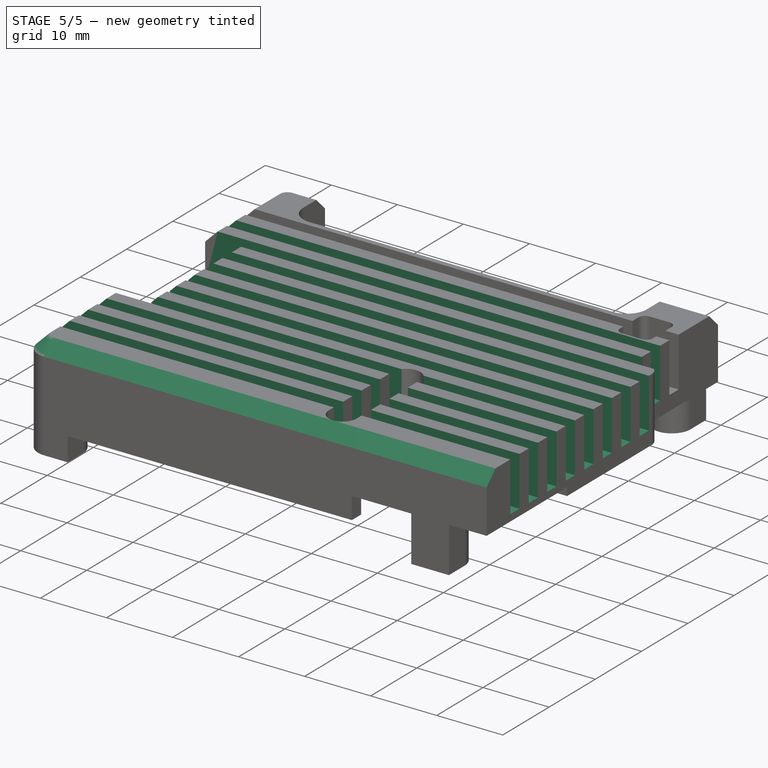
[diagram: stage 5 of 5 — iso view after this stage's code; geometry added in this stage tinted green]
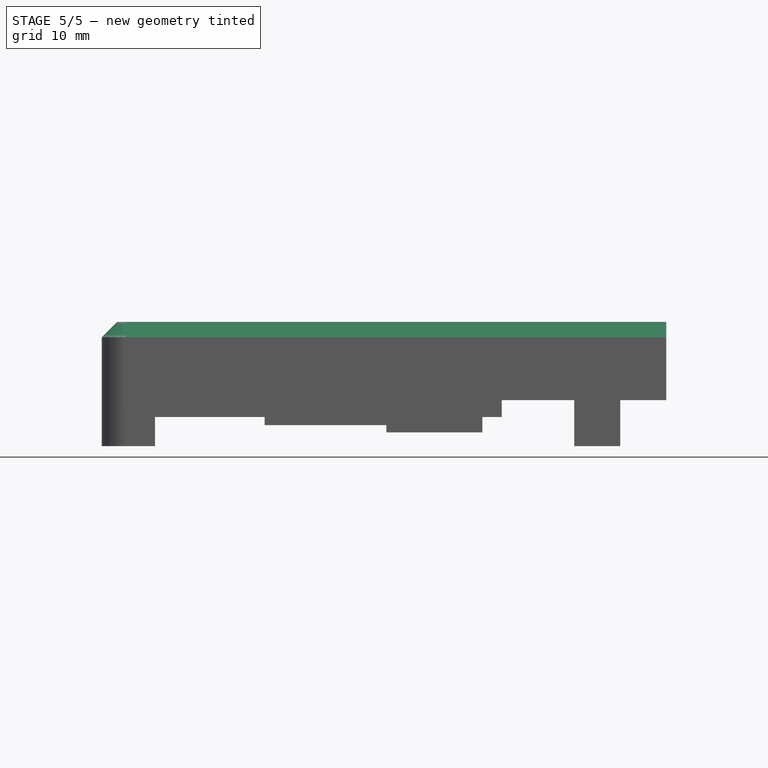
[diagram: stage 5 of 5 — front view after this stage's code; geometry added in this stage tinted green]
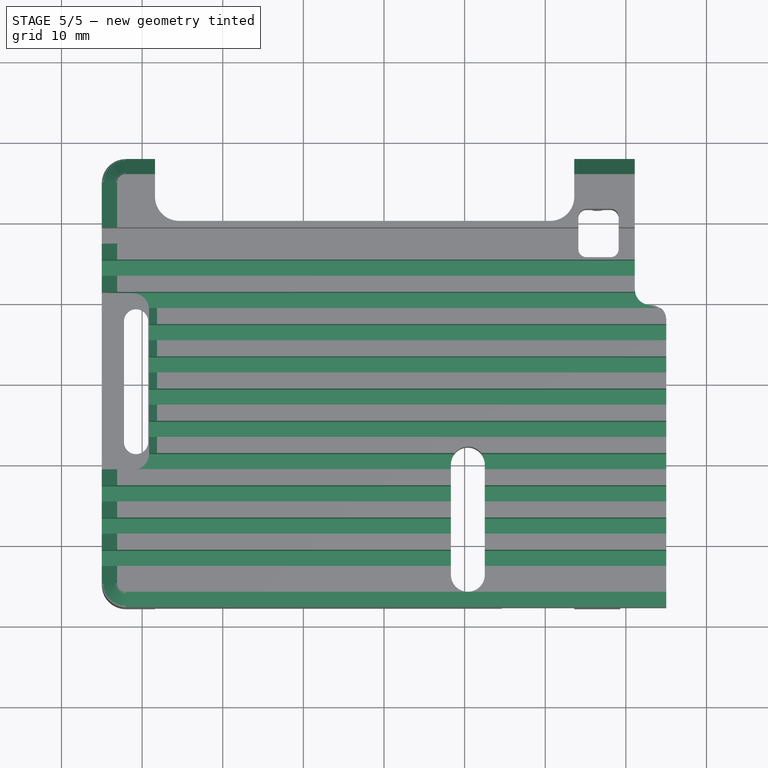
[diagram: stage 5 of 5 — top view after this stage's code; geometry added in this stage tinted green]
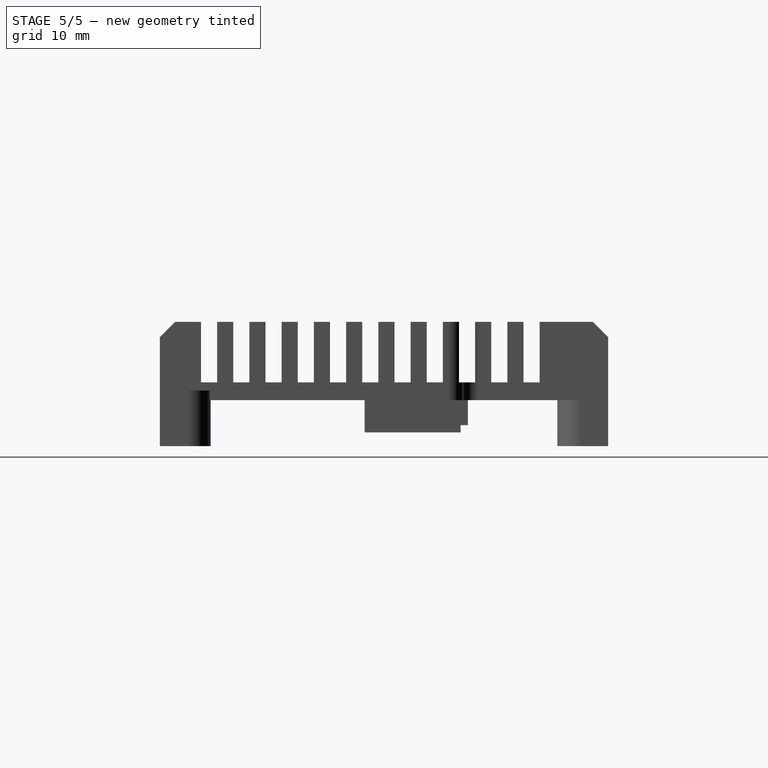
[diagram: stage 5 of 5 — right view after this stage's code; geometry added in this stage tinted green]
FEATURE [PartDesign::LinearPattern] LinearPattern
  BaseFeature = -> Pocket007
  Direction = -> Sketch012 [V_Axis]
  Length = 40
  Occurrences = 11
  Originals = -> [Pocket007]
  Reversed = true
FEATURE [PartDesign::Chamfer] Chamfer
  Angle = 45
  Base = -> LinearPattern [Edge7,Edge4,Edge40,Edge36,Edge32,Edge24,Edge20,Edge16,Edge12,Edge120,Edge126,Edge49]
  BaseFeature = -> LinearPattern
  ChamferType = 0
  FlipDirection = false
  Size = 1.9
  Size2 = 1
  SupportTransform = false
FEATURE [PartDesign::Chamfer] Chamfer001
  Angle = 45
  Base = -> Chamfer [Edge396,Edge400,Edge404,Edge408,Edge412]
  BaseFeature = -> Chamfer
  ChamferType = 0
  FlipDirection = false
  Size = 1
  Size2 = 1
  SupportTransform = false
FEATURE [PartDesign::Body] Body  label="heatsink-top"
  Group = -> [Sketch,Pad,Sketch001,Pad001,Mirrored,Sketch002,Pad002,Sketch003,Pad003,Sketch004,Pad004,Sketch005,Pocket,Sketch006,Pocket001,Sketch007,Pocket002,Sketch008,Pocket003,Sketch009,Pocket004,Sketch010,Pocket005,Sketch011,Pocket006,Sketch012,Pocket007,LinearPattern,Chamfer,Chamfer001]
  Origin = -> Origin
  Tip = -> Chamfer001
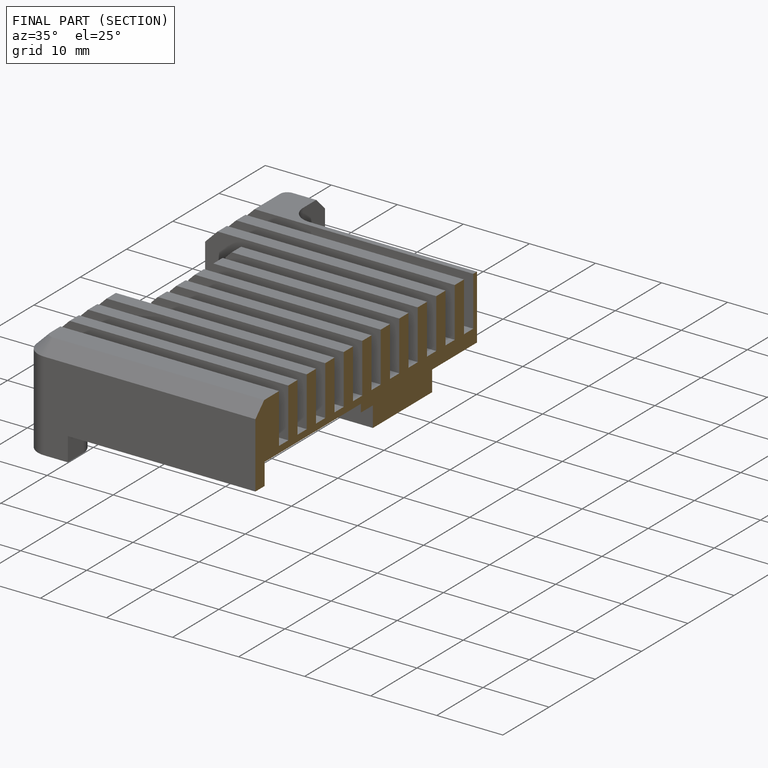
[diagram: finished part — half-section view (interior)]
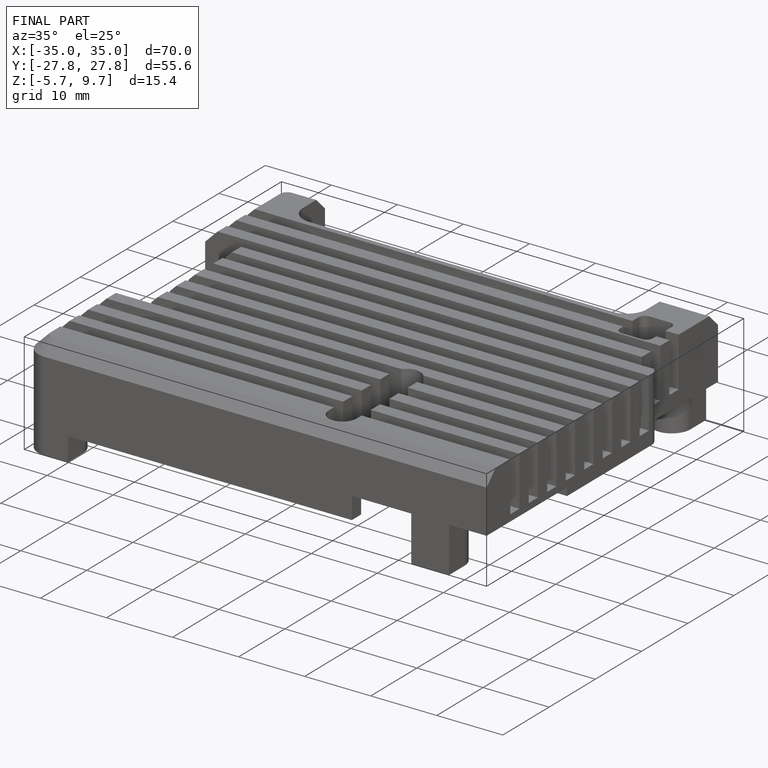
[diagram: finished part — iso view with bounding-box wireframe]
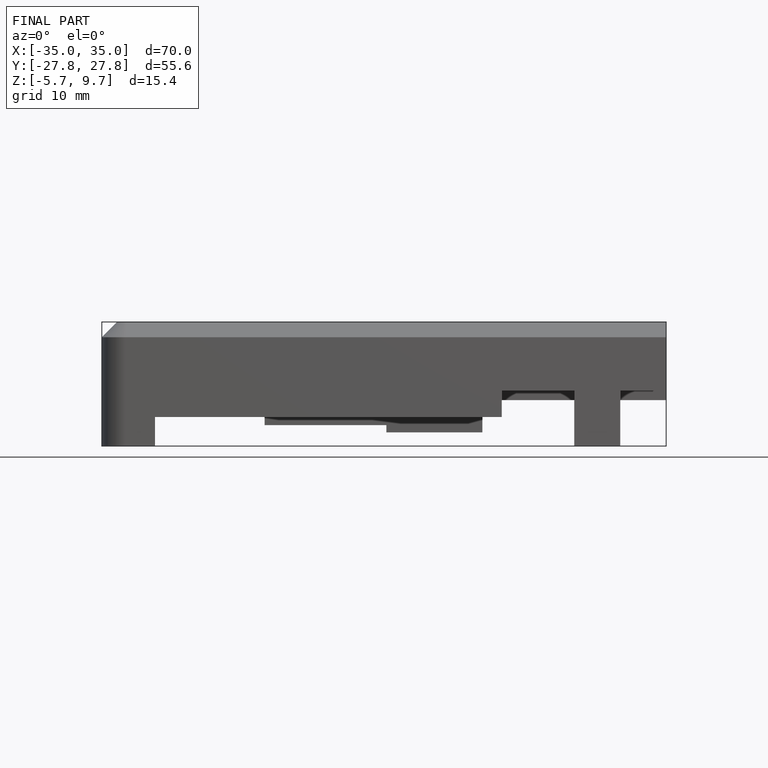
[diagram: finished part — front view with bounding-box wireframe]
